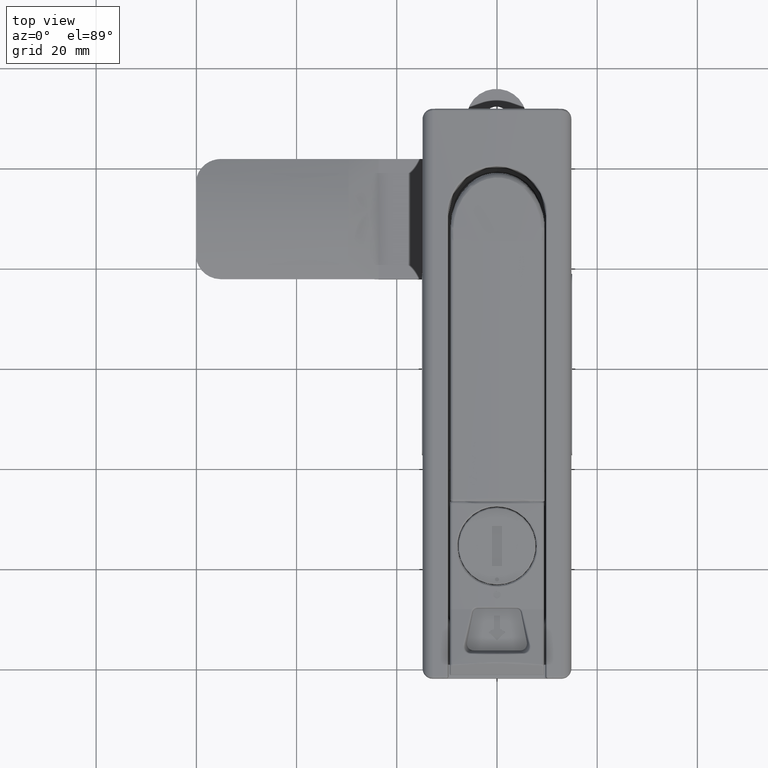
[diagram: clean part render]
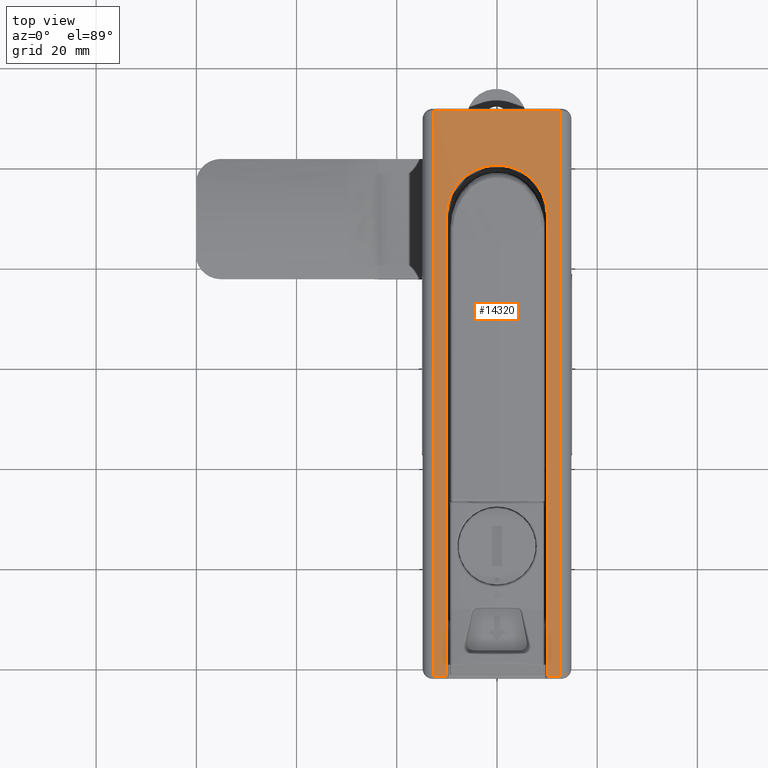
[diagram: same view with one face highlighted and labeled with its STEP entity id]
A machine part, top view. The second image highlights one B-rep face of the part: STEP entity #14320.
In plain terms, the highlighted cylindrical surface (partial cylindrical patch) has radius 110 mm, axis along (0, 1, 0).
Its self-contained STEP definition (entity closure, byte-faithful):
#706=LINE('',#28798,#1626);
#711=LINE('',#28857,#1631);
#902=LINE('',#32298,#1822);
#903=LINE('',#32376,#1823);
#1626=VECTOR('',#16689,92.0000000000001);
#1631=VECTOR('',#16706,92.0000000000001);
#1822=VECTOR('',#17603,112.9);
#1823=VECTOR('',#17608,112.9);
#3008=FACE_OUTER_BOUND('',#3895,.T.);
#3895=EDGE_LOOP('',(#10506,#10507,#10508,#10509,#10510,#10511,#10512,#10513));
#4800=B_SPLINE_CURVE_WITH_KNOTS('',3,(#32300,#32301,#32302,#32303,#32304,
#32305,#32306,#32307,#32308,#32309,#32310,#32311,#32312,#32313,#32314,#32315,
#32316,#32317,#32318,#32319,#32320,#32321,#32322,#32323,#32324,#32325,#32326,
#32327,#32328,#32329,#32330,#32331,#32332,#32333,#32334,#32335,#32336,#32337,
#32338,#32339,#32340,#32341,#32342,#32343,#32344,#32345,#32346,#32347,#32348,
#32349,#32350,#32351,#32352,#32353,#32354,#32355,#32356,#32357,#32358,#32359,
#32360,#32361,#32362,#32363,#32364,#32365,#32366,#32367,#32368,#32369,#32370,
#32371,#32372),.UNSPECIFIED.,.F.,.F.,(4,2,2,2,2,2,2,2,2,2,2,2,2,2,2,2,2,
2,3,2,2,2,2,2,2,2,2,2,2,2,2,2,2,2,2,4),(0.,0.0288887811783821,0.0585707112973827,
0.0886578564607882,0.119014831969977,0.149455679326569,0.179657548354292,
0.209556471772626,0.238895484181561,0.249783451394458,0.25,0.288856508095822,
0.328214226608892,0.368023311718291,0.374942586238936,0.414801193607684,
0.454519963815117,0.493182104012663,0.500000099024208,0.537650158290484,
0.5761317011012,0.614818817642359,0.652470580485839,0.689126986363995,0.724155799325952,
0.75,0.75021411488274,0.779732777489423,0.810441711357866,0.84170645214424,
0.873211645408191,0.904908734056143,0.935433296486413,0.965299259406243,
0.994199669777415,1.),.UNSPECIFIED.);
#5253=CIRCLE('',#15416,110.);
#5254=CIRCLE('',#15417,110.);
#5255=CIRCLE('',#15418,110.);
#5873=VERTEX_POINT('',#28796);
#5874=VERTEX_POINT('',#28797);
#5883=VERTEX_POINT('',#28854);
#5884=VERTEX_POINT('',#28856);
#6194=VERTEX_POINT('',#32296);
#6195=VERTEX_POINT('',#32297);
#6196=VERTEX_POINT('',#32373);
#6197=VERTEX_POINT('',#32375);
#7304=EDGE_CURVE('',#5873,#5874,#706,.T.);
#7314=EDGE_CURVE('',#5884,#5883,#711,.T.);
#7793=EDGE_CURVE('',#6194,#6195,#902,.T.);
#7794=EDGE_CURVE('',#6195,#5873,#5253,.T.);
#7795=EDGE_CURVE('',#5874,#5884,#4800,.T.);
#7796=EDGE_CURVE('',#5883,#6196,#5254,.T.);
#7797=EDGE_CURVE('',#6196,#6197,#903,.T.);
#7798=EDGE_CURVE('',#6197,#6194,#5255,.T.);
#10506=ORIENTED_EDGE('',*,*,#7793,.T.);
#10507=ORIENTED_EDGE('',*,*,#7794,.T.);
#10508=ORIENTED_EDGE('',*,*,#7304,.T.);
#10509=ORIENTED_EDGE('',*,*,#7795,.T.);
#10510=ORIENTED_EDGE('',*,*,#7314,.T.);
#10511=ORIENTED_EDGE('',*,*,#7796,.T.);
#10512=ORIENTED_EDGE('',*,*,#7797,.T.);
#10513=ORIENTED_EDGE('',*,*,#7798,.T.);
#13909=CYLINDRICAL_SURFACE('',#15415,110.);
#14320=ADVANCED_FACE('',(#3008),#13909,.T.);
#15415=AXIS2_PLACEMENT_3D('',#32295,#17601,#17602);
#15416=AXIS2_PLACEMENT_3D('',#32299,#17604,#17605);
#15417=AXIS2_PLACEMENT_3D('',#32374,#17606,#17607);
#15418=AXIS2_PLACEMENT_3D('',#32377,#17609,#17610);
#16689=DIRECTION('',(1.,0.,0.));
#16706=DIRECTION('',(-1.,0.,0.));
#17601=DIRECTION('center_axis',(1.,0.,0.));
#17602=DIRECTION('ref_axis',(0.,-2.78699993901511E-15,-1.));
#17603=DIRECTION('',(-1.,0.,0.));
#17604=DIRECTION('center_axis',(1.,-6.11356291093148E-16,0.));
#17605=DIRECTION('ref_axis',(-6.11356291093148E-16,-1.,0.));
#17606=DIRECTION('center_axis',(1.,-6.11356291093148E-16,0.));
#17607=DIRECTION('ref_axis',(-6.11356291093148E-16,-1.,0.));
#17608=DIRECTION('',(1.,0.,0.));
#17609=DIRECTION('center_axis',(-1.,6.11356291093148E-16,0.));
#17610=DIRECTION('ref_axis',(-6.11356291093148E-16,-1.,0.));
#28796=CARTESIAN_POINT('',(57.9999999999999,-110.09397451754,-7.28589219264733));
#28797=CARTESIAN_POINT('',(150.,-110.09397451754,-7.28589219264731));
#28798=CARTESIAN_POINT('',(186.4,-110.09397451754,-7.28589219264733));
#28854=CARTESIAN_POINT('',(57.9999999999999,-89.90602548246,-7.28589219264729));
#28856=CARTESIAN_POINT('',(150.,-89.9060254824601,-7.28589219264727));
#28857=CARTESIAN_POINT('',(186.4,-89.90602548246,-7.28589219264729));
#32295=CARTESIAN_POINT('Origin',(186.4,-100.,102.25));
#32296=CARTESIAN_POINT('',(170.9,-112.637209302326,-7.0216840771168));
#32297=CARTESIAN_POINT('',(57.9999999999999,-112.637209302326,-7.0216840771168));
#32298=CARTESIAN_POINT('',(186.4,-112.637209302326,-7.0216840771168));
#32299=CARTESIAN_POINT('Origin',(57.9999999999999,-100.,102.25));
#32300=CARTESIAN_POINT('Ctrl Pts',(150.,-110.09397451754,-7.28589219264732));
#32301=CARTESIAN_POINT('Ctrl Pts',(150.307682668601,-110.093974517373,-7.28589219266274));
#32302=CARTESIAN_POINT('Ctrl Pts',(150.614541597035,-110.079748998504,-7.28734843185659));
#32303=CARTESIAN_POINT('Ctrl Pts',(151.232912033333,-110.022630685351,-7.29297609887972));
#32304=CARTESIAN_POINT('Ctrl Pts',(151.544319505383,-109.978961514729,-7.29722092473902));
#32305=CARTESIAN_POINT('Ctrl Pts',(152.165148287518,-109.862096933243,-7.30826033336535));
#32306=CARTESIAN_POINT('Ctrl Pts',(152.474483884999,-109.788506686784,-7.31508885659021));
#32307=CARTESIAN_POINT('Ctrl Pts',(153.087162546057,-109.611864284357,-7.33102366184347));
#32308=CARTESIAN_POINT('Ctrl Pts',(153.390426377969,-109.508554004573,-7.34014973203182));
#32309=CARTESIAN_POINT('Ctrl Pts',(153.986481836123,-109.273397422662,-7.36032062521341));
#32310=CARTESIAN_POINT('Ctrl Pts',(154.279241595177,-109.14147331816,-7.37137058063667));
#32311=CARTESIAN_POINT('Ctrl Pts',(154.848765359581,-108.851484878044,-7.3949135662382));
#32312=CARTESIAN_POINT('Ctrl Pts',(155.125636340604,-108.69363421973,-7.40739448513603));
#32313=CARTESIAN_POINT('Ctrl Pts',(155.660857840548,-108.35393593358,-7.43337620469233));
#32314=CARTESIAN_POINT('Ctrl Pts',(155.919365778237,-108.172345223217,-7.44686542496053));
#32315=CARTESIAN_POINT('Ctrl Pts',(156.414047967458,-107.788782276235,-7.47436062150853));
#32316=CARTESIAN_POINT('Ctrl Pts',(156.650549427634,-107.587255749936,-7.4883521073185));
#32317=CARTESIAN_POINT('Ctrl Pts',(156.96182197994,-107.295907533088,-7.50782223893668));
#32318=CARTESIAN_POINT('Ctrl Pts',(157.04476699333,-107.21554051652,-7.51312085913686));
#32319=CARTESIAN_POINT('Ctrl Pts',(157.127981324193,-107.132067274686,-7.51854566710594));
#32320=CARTESIAN_POINT('Ctrl Pts',(157.129603461693,-107.130438983568,-7.5186514502631));
#32321=CARTESIAN_POINT('Ctrl Pts',(157.422182582205,-106.836550259844,-7.53773743523806));
#32322=CARTESIAN_POINT('Ctrl Pts',(157.69401602622,-106.527833927636,-7.55658819390998));
#32323=CARTESIAN_POINT('Ctrl Pts',(158.200479272042,-105.876757951621,-7.59333751507265));
#32324=CARTESIAN_POINT('Ctrl Pts',(158.434583579937,-105.534016179378,-7.61122051324083));
#32325=CARTESIAN_POINT('Ctrl Pts',(158.861505388949,-104.817875153755,-7.64499010393395));
#32326=CARTESIAN_POINT('Ctrl Pts',(159.053818210131,-104.444169935805,-7.66085128893456));
#32327=CARTESIAN_POINT('Ctrl Pts',(159.252002534727,-103.991819245087,-7.67756541614041));
#32328=CARTESIAN_POINT('Ctrl Pts',(159.280639491787,-103.924485382457,-7.67999135273272));
#32329=CARTESIAN_POINT('Ctrl Pts',(159.469408001411,-103.466960927828,-7.69604289941533));
#32330=CARTESIAN_POINT('Ctrl Pts',(159.605492942549,-103.066778716007,-7.70788447050702));
#32331=CARTESIAN_POINT('Ctrl Pts',(159.8265203773,-102.254334188681,-7.72741239497898));
#32332=CARTESIAN_POINT('Ctrl Pts',(159.911640480249,-101.842120328096,-7.73511311376318));
#32333=CARTESIAN_POINT('Ctrl Pts',(160.028785482605,-101.022431589783,-7.74584162790261));
#32334=CARTESIAN_POINT('Ctrl Pts',(160.062162686141,-100.61512335429,-7.74898824622081));
#32335=CARTESIAN_POINT('Ctrl Pts',(160.072167040781,-100.136312747183,-7.7499352879983));
#32336=CARTESIAN_POINT('Ctrl Pts',(160.072893426611,-100.064542100548,-7.75000445488454));
#32337=CARTESIAN_POINT('Ctrl Pts',(160.072844029095,-99.9927978677408,-7.74999975785506));
#32338=CARTESIAN_POINT('Ctrl Pts',(160.072571248076,-99.5966147354475,-7.74997382010686));
#32339=CARTESIAN_POINT('Ctrl Pts',(160.047663324726,-99.2006043790478,-7.74745048646445));
#32340=CARTESIAN_POINT('Ctrl Pts',(159.9497890771,-98.4052944321823,-7.73799339427872));
#32341=CARTESIAN_POINT('Ctrl Pts',(159.875773337704,-98.0061143916321,-7.73096335903013));
#32342=CARTESIAN_POINT('Ctrl Pts',(159.680459011744,-97.2166797754271,-7.71307903339083));
#32343=CARTESIAN_POINT('Ctrl Pts',(159.55890956562,-96.8264832430594,-7.70220438601656));
#32344=CARTESIAN_POINT('Ctrl Pts',(159.274664710103,-96.0729630702307,-7.67769731871513));
#32345=CARTESIAN_POINT('Ctrl Pts',(159.113156947125,-95.7091988987206,-7.66414636342611));
#32346=CARTESIAN_POINT('Ctrl Pts',(158.754328737458,-95.011915399665,-7.63517236311376));
#32347=CARTESIAN_POINT('Ctrl Pts',(158.558067426246,-94.6778500764442,-7.61980817300164));
#32348=CARTESIAN_POINT('Ctrl Pts',(158.138363235308,-94.0486285128109,-7.58826909898043));
#32349=CARTESIAN_POINT('Ctrl Pts',(157.916513734099,-93.7524028912958,-7.57216042417968));
#32350=CARTESIAN_POINT('Ctrl Pts',(157.503174372818,-93.2608776712992,-7.54342448126887));
#32351=CARTESIAN_POINT('Ctrl Pts',(157.318975794129,-93.059481316882,-7.53099187147279));
#32352=CARTESIAN_POINT('Ctrl Pts',(157.124768670491,-92.8646459577694,-7.51833205929722));
#32353=CARTESIAN_POINT('Ctrl Pts',(157.123172366906,-92.8630456300408,-7.5182280299861));
#32354=CARTESIAN_POINT('Ctrl Pts',(156.901427373941,-92.6408998752921,-7.50378121767655));
#32355=CARTESIAN_POINT('Ctrl Pts',(156.670788112891,-92.4314123903004,-7.48959562663771));
#32356=CARTESIAN_POINT('Ctrl Pts',(156.181339107814,-92.0273546364683,-7.4613028690036));
#32357=CARTESIAN_POINT('Ctrl Pts',(155.921768068963,-91.8337260011181,-7.44722184557708));
#32358=CARTESIAN_POINT('Ctrl Pts',(155.380452561807,-91.468926659951,-7.41986569043755));
#32359=CARTESIAN_POINT('Ctrl Pts',(155.098391147404,-91.2982254184377,-7.40660965395167));
#32360=CARTESIAN_POINT('Ctrl Pts',(154.516857855862,-90.9833553869832,-7.38147241154635));
#32361=CARTESIAN_POINT('Ctrl Pts',(154.217267988492,-90.8394003482116,-7.36960245272333));
#32362=CARTESIAN_POINT('Ctrl Pts',(153.603580741542,-90.5800510737081,-7.34768377688546));
#32363=CARTESIAN_POINT('Ctrl Pts',(153.289405296497,-90.4648357241315,-7.33764647745147));
#32364=CARTESIAN_POINT('Ctrl Pts',(152.662850503835,-90.2691035524184,-7.32021937832564));
#32365=CARTESIAN_POINT('Ctrl Pts',(152.350833855803,-90.1874608167878,-7.31274530731472));
#32366=CARTESIAN_POINT('Ctrl Pts',(151.726801847319,-90.0556336904943,-7.30045569449371));
#32367=CARTESIAN_POINT('Ctrl Pts',(151.414931078915,-90.0048084423122,-7.29558620280137));
#32368=CARTESIAN_POINT('Ctrl Pts',(150.797159460387,-89.9343350098869,-7.28873758807655));
#32369=CARTESIAN_POINT('Ctrl Pts',(150.491391076893,-89.9137320057272,-7.28667006568861));
#32370=CARTESIAN_POINT('Ctrl Pts',(150.123190010264,-89.9066223371637,-7.28595283820146));
#32371=CARTESIAN_POINT('Ctrl Pts',(150.061608461827,-89.906025482564,-7.28589219265685));
#32372=CARTESIAN_POINT('Ctrl Pts',(150.,-89.9060254824601,-7.28589219264728));
#32373=CARTESIAN_POINT('',(57.9999999999999,-87.3627906976746,-7.02168407711677));
#32374=CARTESIAN_POINT('Origin',(57.9999999999999,-100.,102.25));
#32375=CARTESIAN_POINT('',(170.9,-87.3627906976746,-7.02168407711677));
#32376=CARTESIAN_POINT('',(186.4,-87.3627906976746,-7.02168407711677));
#32377=CARTESIAN_POINT('Origin',(170.9,-100.,102.25));